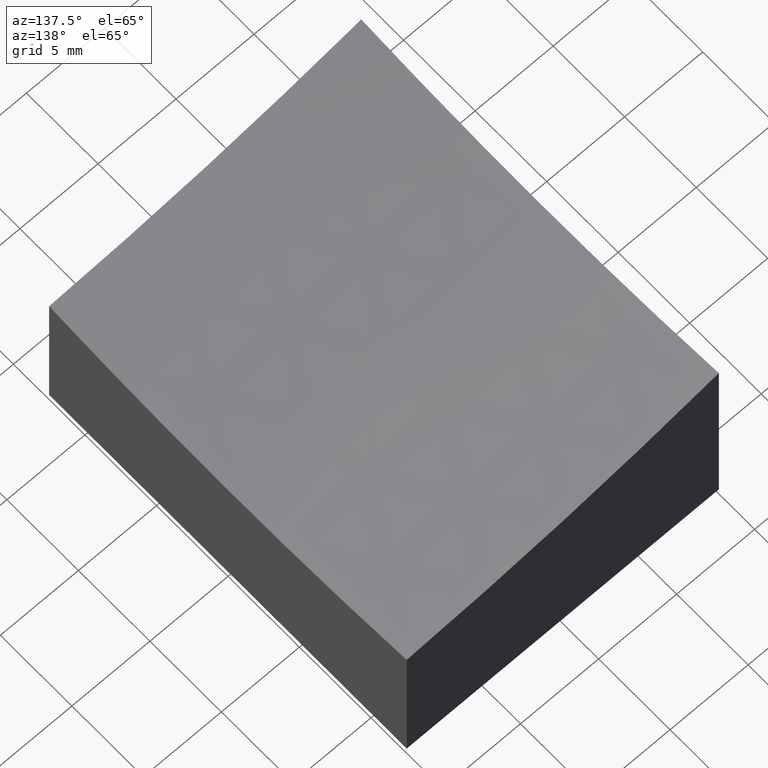
[diagram: clean part render]
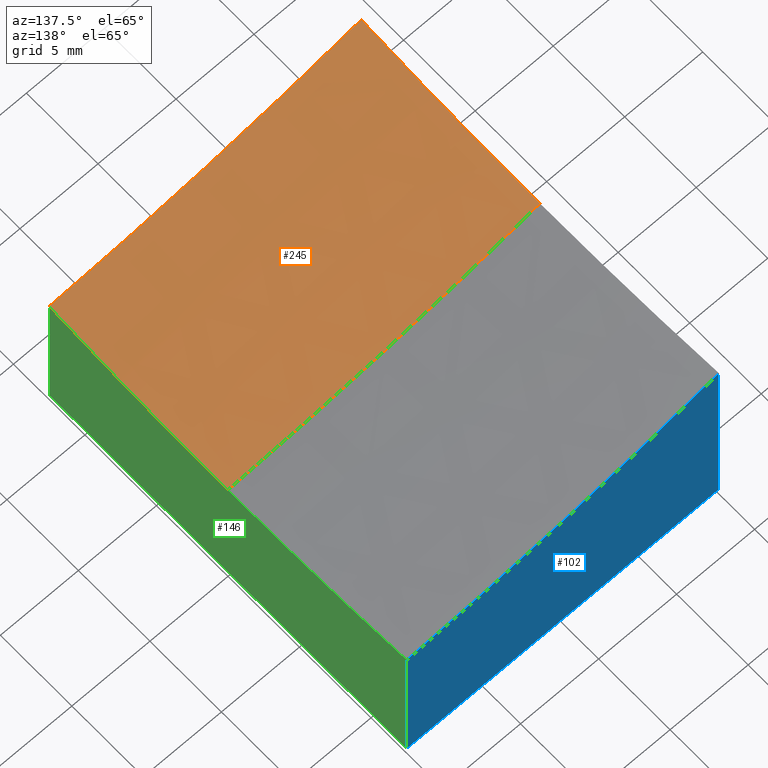
[diagram: same view with three faces highlighted in distinct colors, each labeled with its STEP entity id]
A machine part, auxiliary view with three faces highlighted in distinct colors.
Their STEP definitions:

[orange] entity #245 — the highlighted spherical surface has radius 100 mm.
#30 = DIRECTION ( 'NONE',  ( -1.000000000000000000, -1.748436918438156363E-16, 0.000000000000000000 ) ) ;
#40 = DIRECTION ( 'NONE',  ( 0.000000000000000000, 0.000000000000000000, -1.000000000000000000 ) ) ;
#44 = EDGE_CURVE ( 'NONE', #259, #160, #268, .T. ) ;
#56 = AXIS2_PLACEMENT_3D ( 'NONE', #101, #184, #273 ) ;
#60 = SPHERICAL_SURFACE ( 'NONE', #239, 100.0000000000000000 ) ;
#66 = AXIS2_PLACEMENT_3D ( 'NONE', #223, #197, #40 ) ;
#71 = ORIENTED_EDGE ( 'NONE', *, *, #216, .F. ) ;
#75 = DIRECTION ( 'NONE',  ( -1.000000000000000000, 0.000000000000000000, 0.000000000000000000 ) ) ;
#76 = CARTESIAN_POINT ( 'NONE',  ( 10.00000000000000178, 0.000000000000000000, 99.00000000000000000 ) ) ;
#79 = FACE_OUTER_BOUND ( 'NONE', #263, .T. ) ;
#87 = CARTESIAN_POINT ( 'NONE',  ( 10.00000000000000178, -6.123233995736767268E-16, -0.8749217771908888164 ) ) ;
#101 = CARTESIAN_POINT ( 'NONE',  ( 15.00000000000001421, 0.000000000000000000, 99.00000000000000000 ) ) ;
#114 = ORIENTED_EDGE ( 'NONE', *, *, #44, .F. ) ;
#123 = DIRECTION ( 'NONE',  ( 0.000000000000000000, -1.000000000000000000, -0.000000000000000000 ) ) ;
#128 = EDGE_CURVE ( 'NONE', #160, #212, #202, .T. ) ;
#133 = ORIENTED_EDGE ( 'NONE', *, *, #128, .F. ) ;
#136 = EDGE_CURVE ( 'NONE', #271, #259, #256, .T. ) ;
#145 = AXIS2_PLACEMENT_3D ( 'NONE', #152, #233, #30 ) ;
#150 = CIRCLE ( 'NONE', #56, 100.0000000000000000 ) ;
#152 = CARTESIAN_POINT ( 'NONE',  ( 15.00000000000001599, -12.49999999999999822, 99.00000000000000000 ) ) ;
#154 = ORIENTED_EDGE ( 'NONE', *, *, #136, .F. ) ;
#160 = VERTEX_POINT ( 'NONE', #201 ) ;
#173 = AXIS2_PLACEMENT_3D ( 'NONE', #76, #75, #218 ) ;
#184 = DIRECTION ( 'NONE',  ( 1.224646799147353207E-16, -1.000000000000000000, -1.487096486582537186E-32 ) ) ;
#185 = DIRECTION ( 'NONE',  ( 1.000000000000000000, 0.000000000000000000, -1.387778780781445676E-16 ) ) ;
#197 = DIRECTION ( 'NONE',  ( 1.000000000000000000, 0.000000000000000000, 0.000000000000000000 ) ) ;
#201 = CARTESIAN_POINT ( 'NONE',  ( -9.999999999999998224, -12.50000000000000355, 2.985678151642384925 ) ) ;
#202 = CIRCLE ( 'NONE', #66, 96.82458365518542109 ) ;
#212 = VERTEX_POINT ( 'NONE', #244 ) ;
#216 = EDGE_CURVE ( 'NONE', #212, #271, #150, .T. ) ;
#218 = DIRECTION ( 'NONE',  ( 0.000000000000000000, 0.000000000000000000, 1.000000000000000000 ) ) ;
#222 = CARTESIAN_POINT ( 'NONE',  ( 15.00000000000001421, 0.000000000000000000, 99.00000000000000000 ) ) ;
#223 = CARTESIAN_POINT ( 'NONE',  ( -10.00000000000000000, 0.000000000000000000, 99.00000000000000000 ) ) ;
#233 = DIRECTION ( 'NONE',  ( -1.734723475976807094E-16, 1.000000000000000000, 0.000000000000000000 ) ) ;
#239 = AXIS2_PLACEMENT_3D ( 'NONE', #222, #123, #185 ) ;
#244 = CARTESIAN_POINT ( 'NONE',  ( -9.999999999999998224, -3.061616997868383043E-15, 2.175416344814578906 ) ) ;
#245 = ADVANCED_FACE ( 'NONE', ( #79 ), #60, .F. ) ;
#246 = CARTESIAN_POINT ( 'NONE',  ( 10.00000000000000178, -12.50000000000000000, -0.08960591303207310343 ) ) ;
#256 = CIRCLE ( 'NONE', #173, 99.87492177719090591 ) ;
#259 = VERTEX_POINT ( 'NONE', #246 ) ;
#263 = EDGE_LOOP ( 'NONE', ( #71, #133, #114, #154 ) ) ;
#268 = CIRCLE ( 'NONE', #145, 99.21567416492216296 ) ;
#271 = VERTEX_POINT ( 'NONE', #87 ) ;
#273 = DIRECTION ( 'NONE',  ( 1.000000000000000000, 1.224646799147353207E-16, 0.000000000000000000 ) ) ;

[blue] entity #102 — the highlighted planar face has unit normal (0, -1, 0).
#10 = CARTESIAN_POINT ( 'NONE',  ( -9.999999999999998224, 12.49999999999999645, -10.00000000000000000 ) ) ;
#17 = CARTESIAN_POINT ( 'NONE',  ( 10.00000000000000178, 12.50000000000000000, -0.08960591303207310343 ) ) ;
#18 = AXIS2_PLACEMENT_3D ( 'NONE', #99, #264, #140 ) ;
#20 = LINE ( 'NONE', #187, #32 ) ;
#26 = DIRECTION ( 'NONE',  ( -0.000000000000000000, -0.000000000000000000, -1.000000000000000000 ) ) ;
#32 = VECTOR ( 'NONE', #26, 1000.000000000000000 ) ;
#41 = CARTESIAN_POINT ( 'NONE',  ( 15.00000000000001421, 12.50000000000000178, 99.00000000000000000 ) ) ;
#43 = VECTOR ( 'NONE', #59, 1000.000000000000000 ) ;
#55 = EDGE_CURVE ( 'NONE', #179, #210, #124, .T. ) ;
#59 = DIRECTION ( 'NONE',  ( -1.000000000000000000, -1.734723475976807094E-16, 0.000000000000000000 ) ) ;
#62 = CARTESIAN_POINT ( 'NONE',  ( 10.00000000000000178, 12.50000000000000000, -10.00000000000000000 ) ) ;
#93 = EDGE_CURVE ( 'NONE', #210, #176, #242, .T. ) ;
#98 = DIRECTION ( 'NONE',  ( -0.000000000000000000, -0.000000000000000000, -1.000000000000000000 ) ) ;
#99 = CARTESIAN_POINT ( 'NONE',  ( 10.00000000000000178, 12.50000000000000000, 10.00000000000000000 ) ) ;
#102 = ADVANCED_FACE ( 'NONE', ( #143 ), #269, .F. ) ;
#104 = AXIS2_PLACEMENT_3D ( 'NONE', #41, #182, #196 ) ;
#106 = EDGE_CURVE ( 'NONE', #157, #179, #224, .T. ) ;
#124 = LINE ( 'NONE', #195, #181 ) ;
#134 = ORIENTED_EDGE ( 'NONE', *, *, #106, .T. ) ;
#140 = DIRECTION ( 'NONE',  ( 1.000000000000000000, 1.734723475976807094E-16, 0.000000000000000000 ) ) ;
#142 = CARTESIAN_POINT ( 'NONE',  ( -9.999999999999998224, 12.49999999999999645, 2.985678151642384925 ) ) ;
#143 = FACE_OUTER_BOUND ( 'NONE', #198, .T. ) ;
#157 = VERTEX_POINT ( 'NONE', #142 ) ;
#161 = CARTESIAN_POINT ( 'NONE',  ( 10.00000000000000178, 12.50000000000000000, -10.00000000000000000 ) ) ;
#176 = VERTEX_POINT ( 'NONE', #10 ) ;
#179 = VERTEX_POINT ( 'NONE', #17 ) ;
#181 = VECTOR ( 'NONE', #98, 1000.000000000000000 ) ;
#182 = DIRECTION ( 'NONE',  ( 1.734723475976807094E-16, -1.000000000000000000, 0.000000000000000000 ) ) ;
#187 = CARTESIAN_POINT ( 'NONE',  ( -9.999999999999998224, 12.49999999999999645, 10.00000000000000000 ) ) ;
#195 = CARTESIAN_POINT ( 'NONE',  ( 10.00000000000000178, 12.50000000000000000, 10.00000000000000000 ) ) ;
#196 = DIRECTION ( 'NONE',  ( 1.000000000000000000, 1.748436918438156363E-16, 0.000000000000000000 ) ) ;
#198 = EDGE_LOOP ( 'NONE', ( #219, #134, #204, #227 ) ) ;
#204 = ORIENTED_EDGE ( 'NONE', *, *, #55, .T. ) ;
#210 = VERTEX_POINT ( 'NONE', #161 ) ;
#219 = ORIENTED_EDGE ( 'NONE', *, *, #272, .F. ) ;
#224 = CIRCLE ( 'NONE', #104, 99.21567416492216296 ) ;
#227 = ORIENTED_EDGE ( 'NONE', *, *, #93, .T. ) ;
#242 = LINE ( 'NONE', #62, #43 ) ;
#264 = DIRECTION ( 'NONE',  ( 1.734723475976807094E-16, -1.000000000000000000, 0.000000000000000000 ) ) ;
#269 = PLANE ( 'NONE',  #18 ) ;
#272 = EDGE_CURVE ( 'NONE', #157, #176, #20, .T. ) ;

[green] entity #146 — the highlighted planar face has unit normal (-1, 0, 0).
#16 = DIRECTION ( 'NONE',  ( -0.000000000000000000, -0.000000000000000000, -1.000000000000000000 ) ) ;
#17 = CARTESIAN_POINT ( 'NONE',  ( 10.00000000000000178, 12.50000000000000000, -0.08960591303207310343 ) ) ;
#19 = ORIENTED_EDGE ( 'NONE', *, *, #188, .T. ) ;
#28 = VECTOR ( 'NONE', #247, 1000.000000000000000 ) ;
#38 = CARTESIAN_POINT ( 'NONE',  ( 10.00000000000000178, -12.50000000000000000, -10.00000000000000000 ) ) ;
#39 = CARTESIAN_POINT ( 'NONE',  ( 10.00000000000000178, -12.50000000000000000, -10.00000000000000000 ) ) ;
#42 = CARTESIAN_POINT ( 'NONE',  ( 10.00000000000000178, -12.50000000000000000, 10.00000000000000000 ) ) ;
#47 = EDGE_CURVE ( 'NONE', #119, #210, #96, .T. ) ;
#55 = EDGE_CURVE ( 'NONE', #179, #210, #124, .T. ) ;
#75 = DIRECTION ( 'NONE',  ( -1.000000000000000000, 0.000000000000000000, 0.000000000000000000 ) ) ;
#76 = CARTESIAN_POINT ( 'NONE',  ( 10.00000000000000178, 0.000000000000000000, 99.00000000000000000 ) ) ;
#81 = DIRECTION ( 'NONE',  ( 0.000000000000000000, 0.000000000000000000, 1.000000000000000000 ) ) ;
#87 = CARTESIAN_POINT ( 'NONE',  ( 10.00000000000000178, -6.123233995736767268E-16, -0.8749217771908888164 ) ) ;
#89 = AXIS2_PLACEMENT_3D ( 'NONE', #137, #249, #81 ) ;
#94 = ORIENTED_EDGE ( 'NONE', *, *, #55, .F. ) ;
#96 = LINE ( 'NONE', #38, #28 ) ;
#97 = CARTESIAN_POINT ( 'NONE',  ( 10.00000000000000178, -12.50000000000000000, 10.00000000000000000 ) ) ;
#98 = DIRECTION ( 'NONE',  ( -0.000000000000000000, -0.000000000000000000, -1.000000000000000000 ) ) ;
#112 = ORIENTED_EDGE ( 'NONE', *, *, #47, .T. ) ;
#117 = PLANE ( 'NONE',  #135 ) ;
#119 = VERTEX_POINT ( 'NONE', #39 ) ;
#124 = LINE ( 'NONE', #195, #181 ) ;
#135 = AXIS2_PLACEMENT_3D ( 'NONE', #42, #276, #163 ) ;
#136 = EDGE_CURVE ( 'NONE', #271, #259, #256, .T. ) ;
#137 = CARTESIAN_POINT ( 'NONE',  ( 10.00000000000000178, 0.000000000000000000, 99.00000000000000000 ) ) ;
#144 = VECTOR ( 'NONE', #16, 1000.000000000000000 ) ;
#146 = ADVANCED_FACE ( 'NONE', ( #217 ), #117, .F. ) ;
#161 = CARTESIAN_POINT ( 'NONE',  ( 10.00000000000000178, 12.50000000000000000, -10.00000000000000000 ) ) ;
#163 = DIRECTION ( 'NONE',  ( 0.000000000000000000, 0.000000000000000000, 1.000000000000000000 ) ) ;
#173 = AXIS2_PLACEMENT_3D ( 'NONE', #76, #75, #218 ) ;
#179 = VERTEX_POINT ( 'NONE', #17 ) ;
#181 = VECTOR ( 'NONE', #98, 1000.000000000000000 ) ;
#188 = EDGE_CURVE ( 'NONE', #259, #119, #240, .T. ) ;
#191 = ORIENTED_EDGE ( 'NONE', *, *, #206, .T. ) ;
#195 = CARTESIAN_POINT ( 'NONE',  ( 10.00000000000000178, 12.50000000000000000, 10.00000000000000000 ) ) ;
#206 = EDGE_CURVE ( 'NONE', #179, #271, #267, .T. ) ;
#210 = VERTEX_POINT ( 'NONE', #161 ) ;
#214 = ORIENTED_EDGE ( 'NONE', *, *, #136, .T. ) ;
#217 = FACE_OUTER_BOUND ( 'NONE', #237, .T. ) ;
#218 = DIRECTION ( 'NONE',  ( 0.000000000000000000, 0.000000000000000000, 1.000000000000000000 ) ) ;
#237 = EDGE_LOOP ( 'NONE', ( #94, #191, #214, #19, #112 ) ) ;
#240 = LINE ( 'NONE', #97, #144 ) ;
#246 = CARTESIAN_POINT ( 'NONE',  ( 10.00000000000000178, -12.50000000000000000, -0.08960591303207310343 ) ) ;
#247 = DIRECTION ( 'NONE',  ( 0.000000000000000000, 1.000000000000000000, 0.000000000000000000 ) ) ;
#249 = DIRECTION ( 'NONE',  ( -1.000000000000000000, 0.000000000000000000, 0.000000000000000000 ) ) ;
#256 = CIRCLE ( 'NONE', #173, 99.87492177719090591 ) ;
#259 = VERTEX_POINT ( 'NONE', #246 ) ;
#267 = CIRCLE ( 'NONE', #89, 99.87492177719090591 ) ;
#271 = VERTEX_POINT ( 'NONE', #87 ) ;
#276 = DIRECTION ( 'NONE',  ( -1.000000000000000000, 0.000000000000000000, 0.000000000000000000 ) ) ;